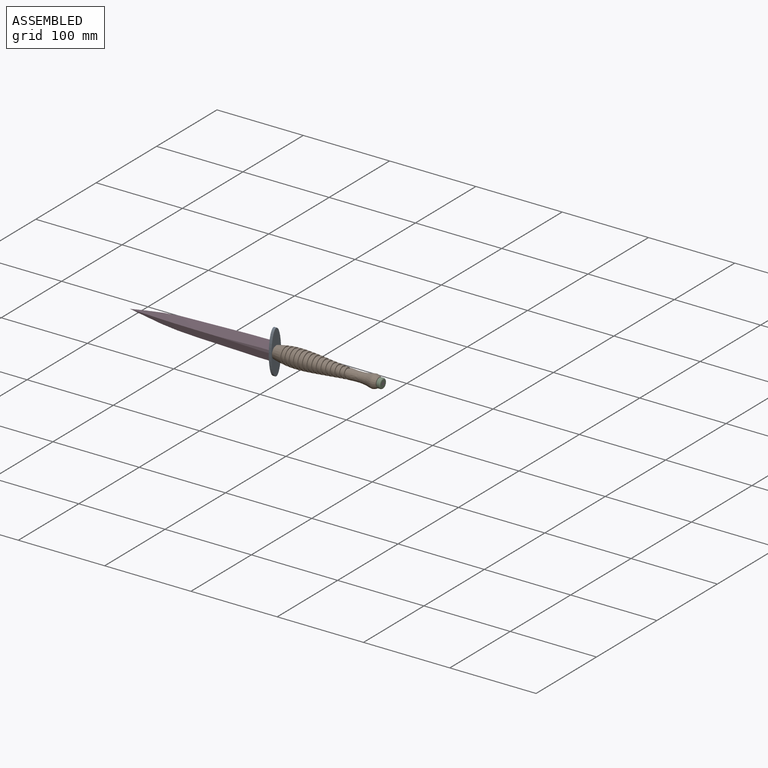
[diagram: assembled view]
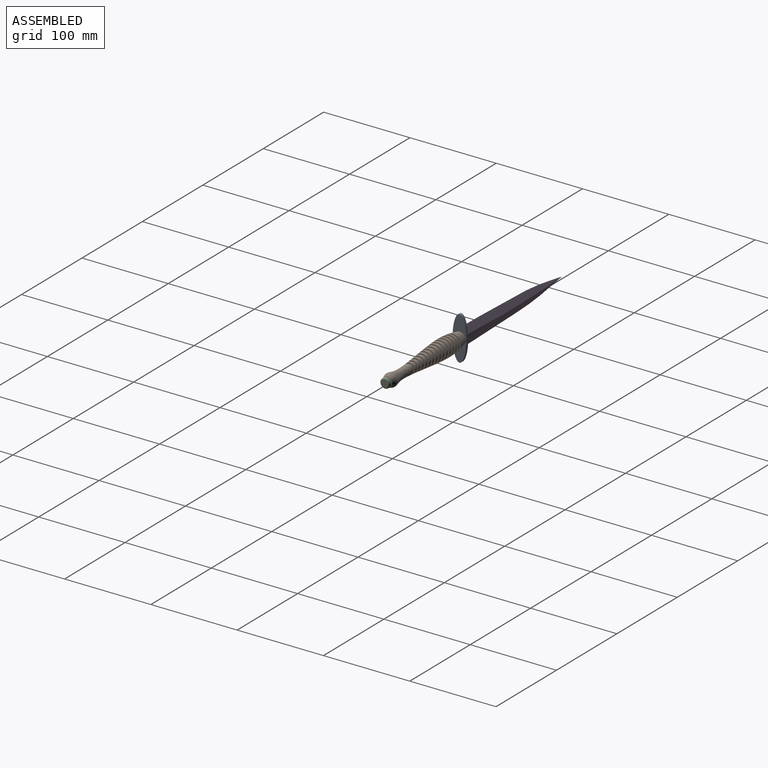
[diagram: assembled view, second angle]
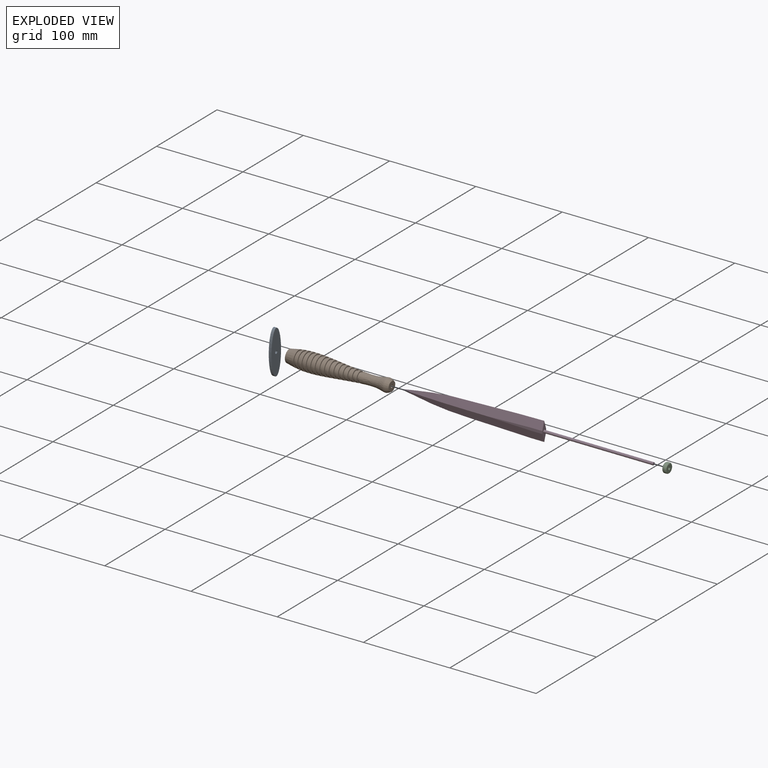
[diagram: exploded view]
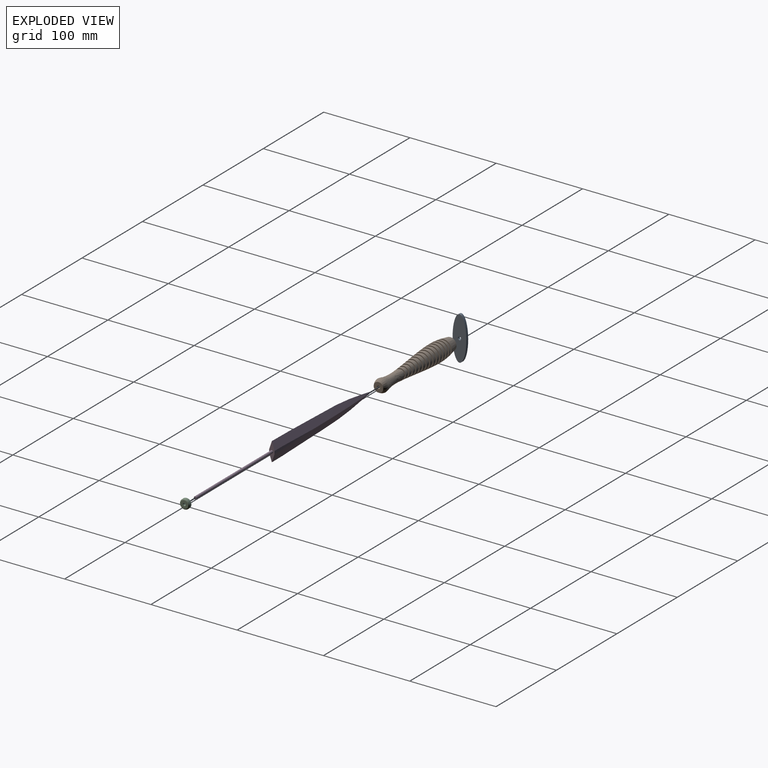
[diagram: exploded view, second angle]
ASSEMBLY  parts=4 mates=3
PART A: 4 faces, bbox 50.8x3.2x15.9 mm
  f0: cylinder r=1.79mm len=3.57mm, axis (0,1,0), area 35.6mm2, adj f2,f3
  f1: extruded ~50.8x15.88mm, area 355.9mm2, adj f2,f3
  f2: plane 50.8x15.88mm, normal (0,-1,0), area 623.4mm2, adj f0,f1
  f3: plane 50.8x15.88mm, normal (0,1,0), area 623.4mm2, adj f0,f1
PART B: 67 faces, bbox 119.1x20.7x20.7 mm
  f0: plane 14.29x14.29mm, normal (-1,0,0), area 150.3mm2, adj f1,f66
  f1: cylinder r=1.79mm len=119.06mm, axis (-1,0,0), area 1336mm2, adj f0,f2
  f2: plane 11.11x11.11mm, normal (1,0,0), area 87mm2, adj f1,f3
  f3: revolved ~15.08x15.08mm, area 220.4mm2, adj f2,f4
  f4: revolved ~15.12x15.12mm, area 511.8mm2, adj f3,f5
  f5: revolved ~17.11x11.69mm, area 592.8mm2, adj f4,f6
  f6: plane 11.69x11.69mm, normal (-1,0,0), area 41.6mm2, adj f5,f7
  f7: revolved ~9.51x9.51mm, area 74.6mm2, adj f6,f8
  f8: plane 12.05x12.05mm, normal (1,0,0), area 43mm2, adj f7,f9
  f9: revolved ~12.44x12.44mm, area 98mm2, adj f8,f10
  f10: plane 12.44x12.44mm, normal (-1,0,0), area 44.6mm2, adj f9,f11
  f11: revolved ~10.33x10.33mm, area 81mm2, adj f10,f12
  f12: plane 12.87x12.87mm, normal (1,0,0), area 46.3mm2, adj f11,f13
  f13: revolved ~13.31x13.31mm, area 104.8mm2, adj f12,f14
  f14: plane 13.31x13.31mm, normal (-1,0,0), area 48mm2, adj f13,f15
  f15: revolved ~11.23x11.23mm, area 88.1mm2, adj f14,f16
  f16: plane 13.77x13.77mm, normal (1,0,0), area 49.9mm2, adj f15,f17
  f17: revolved ~14.25x14.25mm, area 112.3mm2, adj f16,f18
  f18: plane 14.25x14.25mm, normal (-1,0,0), area 51.8mm2, adj f17,f19
  f19: revolved ~12.19x12.19mm, area 95.8mm2, adj f18,f20
  f20: plane 14.73x14.73mm, normal (1,0,0), area 53.7mm2, adj f19,f21
  f21: revolved ~15.22x15.22mm, area 120.1mm2, adj f20,f22
  f22: plane 15.22x15.22mm, normal (-1,0,0), area 55.7mm2, adj f21,f23
  f23: revolved ~13.17x13.17mm, area 103.6mm2, adj f22,f24
  f24: plane 15.71x15.71mm, normal (1,0,0), area 57.6mm2, adj f23,f25
  f25: revolved ~16.21x16.21mm, area 128mm2, adj f24,f26
  f26: plane 16.21x16.21mm, normal (-1,0,0), area 59.6mm2, adj f25,f27
  f27: revolved ~14.16x14.16mm, area 111.5mm2, adj f26,f28
  f28: plane 16.7x16.7mm, normal (1,0,0), area 61.5mm2, adj f27,f29
  f29: revolved ~17.18x17.18mm, area 135.8mm2, adj f28,f30
  f30: plane 17.18x17.18mm, normal (-1,0,0), area 63.5mm2, adj f29,f31
  f31: revolved ~15.11x15.11mm, area 119.2mm2, adj f30,f32
  f32: plane 17.65x17.65mm, normal (1,0,0), area 65.4mm2, adj f31,f33
  f33: revolved ~18.11x18.11mm, area 143.3mm2, adj f32,f34
  f34: plane 18.11x18.11mm, normal (-1,0,0), area 67.2mm2, adj f33,f35
  f35: revolved ~16.01x16.01mm, area 126.5mm2, adj f34,f36
  f36: plane 18.55x18.55mm, normal (1,0,0), area 69mm2, adj f35,f37
  f37: revolved ~18.97x18.97mm, area 150.2mm2, adj f36,f38
  f38: plane 18.97x18.97mm, normal (-1,0,0), area 70.6mm2, adj f37,f39
  f39: revolved ~16.83x16.83mm, area 133.1mm2, adj f38,f40
  f40: plane 19.37x19.37mm, normal (1,0,0), area 72.2mm2, adj f39,f41
  f41: revolved ~19.73x19.73mm, area 156.4mm2, adj f40,f42
  f42: plane 19.73x19.73mm, normal (-1,0,0), area 73.6mm2, adj f41,f43
  f43: revolved ~17.51x17.51mm, area 138.7mm2, adj f42,f44
  f44: plane 20.05x20.05mm, normal (1,0,0), area 74.9mm2, adj f43,f45
  f45: revolved ~20.32x20.32mm, area 161.3mm2, adj f44,f46
  f46: plane 20.32x20.32mm, normal (-1,0,0), area 76mm2, adj f45,f47
  f47: revolved ~17.99x17.99mm, area 142.9mm2, adj f46,f48
  f48: plane 20.53x20.53mm, normal (1,0,0), area 76.8mm2, adj f47,f49
  f49: revolved ~20.64x20.64mm, area 118.3mm2, adj f48,f50
  f50: revolved ~20.67x20.67mm, area 46.2mm2, adj f49,f51
  f51: plane 20.67x20.67mm, normal (-1,0,0), area 77.4mm2, adj f50,f52
  f52: revolved ~18.18x18.18mm, area 144.9mm2, adj f51,f53
  f53: plane 20.72x20.72mm, normal (1,0,0), area 77.6mm2, adj f52,f54
  f54: revolved ~20.72x20.72mm, area 165.2mm2, adj f53,f55
  f55: plane 20.66x20.66mm, normal (-1,0,0), area 77.4mm2, adj f54,f56
  f56: revolved ~18.12x18.12mm, area 144.1mm2, adj f55,f57
  f57: plane 20.5x20.5mm, normal (1,0,0), area 76.7mm2, adj f56,f58
  f58: revolved ~20.5x20.5mm, area 162.8mm2, adj f57,f59
  f59: plane 20.23x20.23mm, normal (-1,0,0), area 75.6mm2, adj f58,f60
  f60: revolved ~17.69x17.69mm, area 140mm2, adj f59,f61
  f61: plane 19.82x19.82mm, normal (1,0,0), area 74mm2, adj f60,f62
  f62: revolved ~19.82x19.82mm, area 157mm2, adj f61,f63
  f63: plane 19.29x19.29mm, normal (-1,0,0), area 71.9mm2, adj f62,f64
  f64: revolved ~16.75x16.75mm, area 132.2mm2, adj f63,f65
  f65: plane 18.61x18.61mm, normal (1,0,0), area 69.2mm2, adj f64,f66
  f66: revolved ~18.61x18.61mm, area 598.6mm2, adj f0,f65
PART C: 6 faces, bbox 4.8x12x12 mm
  f0: cylinder r=1.59mm len=4.76mm, axis (-1,0,0), area 47.5mm2, adj f2,f3
  f1: cylinder r=5.56mm len=11.11mm, axis (-1,0,0), area 77.6mm2, adj f4,f5
  f2: plane 8.57x8.57mm, normal (1,0,0), area 49.8mm2, adj f0,f5
  f3: plane 8.57x8.57mm, normal (-1,0,0), area 49.8mm2, adj f0,f4
  f4: torus R=4.29mm, axis (1,0,0), area 63.9mm2, adj f1,f3
  f5: torus R=4.29mm, axis (1,0,0), area 63.9mm2, adj f1,f2
PART D: 9 faces, bbox 306.7x11.2x27.2 mm
  f0: plane 3.18x3.18mm, normal (1,0,0), area 7.9mm2, adj f1
  f1: cylinder r=1.59mm len=127mm, axis (-1,0,0), area 1266.8mm2, adj f0,f2
  f2: plane 22.23x6.35mm, normal (1,0,0), area 72.7mm2, adj f1,f3,f4,f5,f6,f7,f8
  f3: plane 69.83x8.19mm, normal (0,-1,0), area 127.1mm2, adj f2,f7,f8
  f4: plane 69.83x8.19mm, normal (0,1,0), area 127.1mm2, adj f2,f5,f6
  f5: bspline ~179.48x22.01mm, area 1164.1mm2, adj f2,f4,f6,f7
  f6: bspline ~179.48x22.01mm, area 1164mm2, adj f2,f4,f5,f8
  f7: bspline ~179.48x22.01mm, area 1164.1mm2, adj f2,f3,f5,f8
  f8: bspline ~179.48x22.01mm, area 1164mm2, adj f2,f3,f6,f7
PLACE A rot(axis=(0.58,0.58,-0.58),120deg) t=(95.02,34,-11.33)mm
PLACE B t=(95.02,34,-11.33)mm
PLACE C t=(214.09,34,-11.33)mm
PLACE D t=(-74.84,34,-11.33)mm
MATE fastened A.f0 <-> D.f1  axis (1,0,0) through (91.85,34,-11.33)mm
MATE fastened C.f0 <-> B.f1  axis (-1,0,0) through (214.09,34,-11.33)mm
MATE fastened B.f1 <-> A.f0  axis (-1,0,0) through (95.02,34,-11.33)mm
